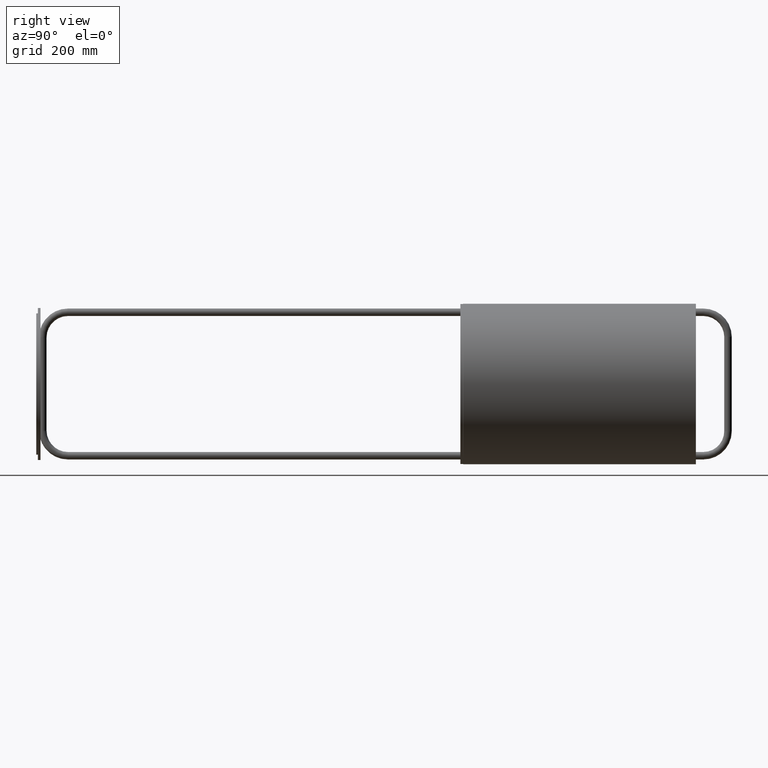
[diagram: clean part render]
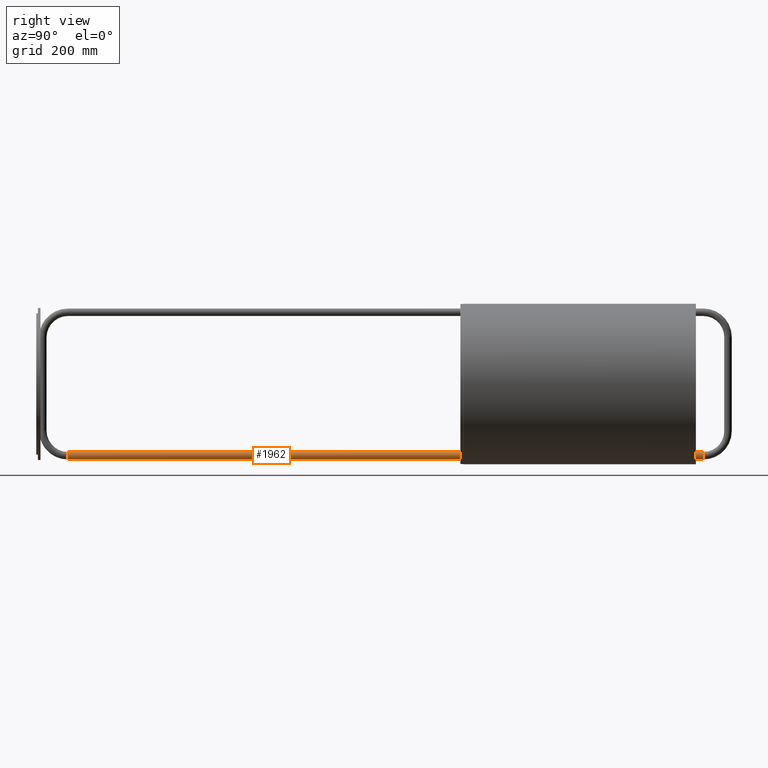
[diagram: same view with one face highlighted and labeled with its STEP entity id]
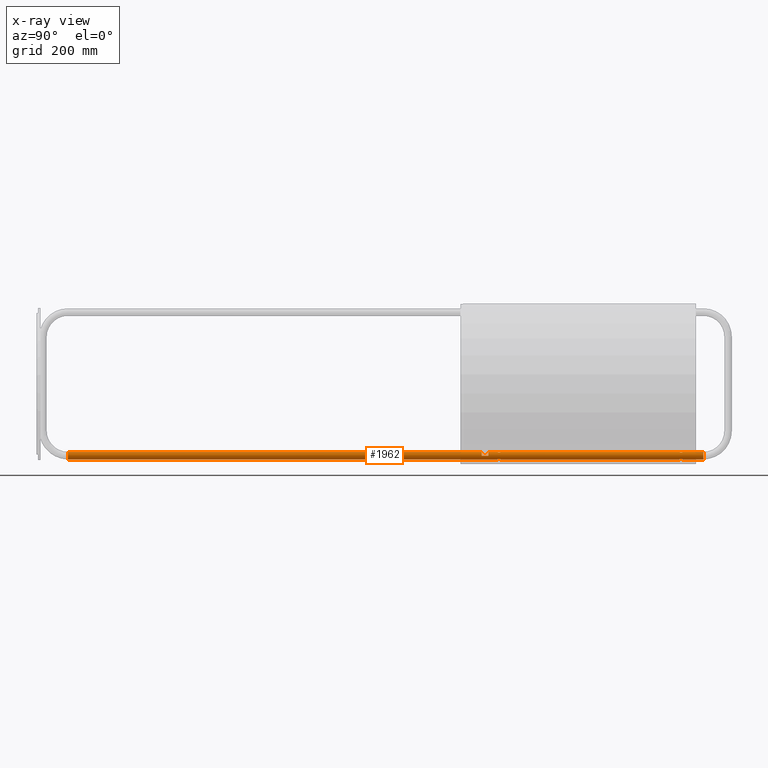
[diagram: x-ray of the same camera — body ghosted, the highlighted face saturated]
A machine part, right view. The second image highlights one B-rep face of the part: STEP entity #1962.
The next image is the same camera in x-ray: the body ghosted, the highlighted face saturated — about 0% of this face is hidden behind the body in this view.
In plain terms, the highlighted cylindrical surface (edge-blend (fillet) strip) has radius 7 mm, axis along (0, 1, -0).
Its self-contained STEP definition (entity closure, byte-faithful):
#146 = CARTESIAN_POINT ( 'NONE',  ( 126.9999999999999700, -320.0000000000001700, 8.572527594031533300E-016 ) ) ;
#166 = CARTESIAN_POINT ( 'NONE',  ( 141.0000000000000000, -355.3602644299787100, 3.781776599227647900E-016 ) ) ;
#192 = CARTESIAN_POINT ( 'NONE',  ( 126.9999999999999700, -332.0000000000001700, 8.572527594031533300E-016 ) ) ;
#204 = CARTESIAN_POINT ( 'NONE',  ( 141.0000000000001100, -733.9999999999994300, 0.0000000000000000000 ) ) ;
#434 = VERTEX_POINT ( 'NONE', #146 ) ;
#446 = VERTEX_POINT ( 'NONE', #1399 ) ;
#490 = VERTEX_POINT ( 'NONE', #1080 ) ;
#611 = VERTEX_POINT ( 'NONE', #1234 ) ;
#677 = CARTESIAN_POINT ( 'NONE',  ( 127.0000000000000000, -349.3606748984981900, -5.958125122679846200E-017 ) ) ;
#712 = CARTESIAN_POINT ( 'NONE',  ( 127.0000000000001100, -733.9999999999998900, 8.572527594031433700E-016 ) ) ;
#732 = CARTESIAN_POINT ( 'NONE',  ( 133.9999999999999700, -332.0000000000001700, -7.000000000000070200 ) ) ;
#762 = CARTESIAN_POINT ( 'NONE',  ( 141.0000000000000000, -349.3606748984981900, -8.630978973075196600E-015 ) ) ;
#763 = CARTESIAN_POINT ( 'NONE',  ( 140.9999999999999100, 452.9999999999999400, 0.0000000000000000000 ) ) ;
#773 = VERTEX_POINT ( 'NONE', #1303 ) ;
#812 = VERTEX_POINT ( 'NONE', #1300 ) ;
#869 = CARTESIAN_POINT ( 'NONE',  ( 126.9999999999996700, -695.3604678334094200, 7.369337560215173200E-014 ) ) ;
#917 = VERTEX_POINT ( 'NONE', #677 ) ;
#972 = VERTEX_POINT ( 'NONE', #869 ) ;
#994 = VERTEX_POINT ( 'NONE', #1296 ) ;
#1011 = VERTEX_POINT ( 'NONE', #1280 ) ;
#1026 = VERTEX_POINT ( 'NONE', #192 ) ;
#1027 = VERTEX_POINT ( 'NONE', #732 ) ;
#1032 = VERTEX_POINT ( 'NONE', #1202 ) ;
#1045 = VERTEX_POINT ( 'NONE', #166 ) ;
#1080 = CARTESIAN_POINT ( 'NONE',  ( 126.9999999999983900, -355.3602644299824600, 3.342013202503950500E-013 ) ) ;
#1086 = CARTESIAN_POINT ( 'NONE',  ( 141.0000000000000300, -689.3604678413933000, -1.295731552899731200E-014 ) ) ;
#1127 = VERTEX_POINT ( 'NONE', #1183 ) ;
#1132 = VERTEX_POINT ( 'NONE', #712 ) ;
#1183 = CARTESIAN_POINT ( 'NONE',  ( 141.0000000000000300, -695.3604678334085100, -4.871847897905070300E-018 ) ) ;
#1202 = CARTESIAN_POINT ( 'NONE',  ( 140.3244819036834500, -692.3604678374009600, -3.000154771004491100 ) ) ;
#1234 = CARTESIAN_POINT ( 'NONE',  ( 127.6589185963639500, -352.3604696642384500, -2.964909211503968100 ) ) ;
#1280 = CARTESIAN_POINT ( 'NONE',  ( 127.6755180963166100, -692.3604678374009600, -3.000154771004491100 ) ) ;
#1296 = CARTESIAN_POINT ( 'NONE',  ( 126.9999999999998900, 452.9999999999999400, 8.572527594031567900E-016 ) ) ;
#1300 = CARTESIAN_POINT ( 'NONE',  ( 127.0000000000000300, -689.3604678413933000, 8.638389555567177200E-016 ) ) ;
#1303 = CARTESIAN_POINT ( 'NONE',  ( 133.9999999999999700, -320.0000000000001700, -7.000000000000012400 ) ) ;
#1364 = VERTEX_POINT ( 'NONE', #1086 ) ;
#1365 = VERTEX_POINT ( 'NONE', #204 ) ;
#1373 = VERTEX_POINT ( 'NONE', #763 ) ;
#1374 = VERTEX_POINT ( 'NONE', #762 ) ;
#1399 = CARTESIAN_POINT ( 'NONE',  ( 140.3410814036360800, -352.3604696642384500, -2.964909211503968100 ) ) ;
#1486 = AXIS2_PLACEMENT_3D ( 'NONE', #4020, #4018, #4017 ) ;
#1564 = AXIS2_PLACEMENT_3D ( 'NONE', #3739, #3502, #3484 ) ;
#1571 = AXIS2_PLACEMENT_3D ( 'NONE', #3664, #3648, #3650 ) ;
#1750 = AXIS2_PLACEMENT_3D ( 'NONE', #4163, #4165, #4423 ) ;
#1804 = AXIS2_PLACEMENT_3D ( 'NONE', #2977, #2971, #3005 ) ;
#1962 = ADVANCED_FACE ( 'NONE', ( #2767 ), #2764, .T. ) ;
#1977 = EDGE_CURVE ( 'NONE', #1026, #917, #2622, .T. ) ;
#2009 = EDGE_CURVE ( 'NONE', #773, #1027, #5901, .T. ) ;
#2011 = EDGE_CURVE ( 'NONE', #812, #1011, #8505, .T. ) ;
#2012 = EDGE_CURVE ( 'NONE', #972, #1132, #2731, .T. ) ;
#2017 = EDGE_CURVE ( 'NONE', #994, #1373, #5870, .T. ) ;
#2104 = EDGE_CURVE ( 'NONE', #1045, #1364, #6094, .T. ) ;
#2112 = EDGE_CURVE ( 'NONE', #434, #773, #5953, .T. ) ;
#2116 = EDGE_CURVE ( 'NONE', #1127, #1365, #5952, .T. ) ;
#2117 = EDGE_CURVE ( 'NONE', #994, #434, #5966, .T. ) ;
#2145 = EDGE_CURVE ( 'NONE', #1365, #1132, #5861, .T. ) ;
#2156 = EDGE_CURVE ( 'NONE', #1373, #1374, #5866, .T. ) ;
#2176 = EDGE_CURVE ( 'NONE', #490, #812, #5903, .T. ) ;
#2177 = EDGE_CURVE ( 'NONE', #917, #611, #8464, .T. ) ;
#2197 = EDGE_CURVE ( 'NONE', #1027, #1026, #5915, .T. ) ;
#2211 = EDGE_CURVE ( 'NONE', #1032, #1364, #8509, .T. ) ;
#2234 = EDGE_CURVE ( 'NONE', #446, #1374, #8462, .T. ) ;
#2616 = VECTOR ( 'NONE', #3019, 1000.000000000000000 ) ;
#2620 = VECTOR ( 'NONE', #2881, 1000.000000000000000 ) ;
#2622 = LINE ( 'NONE', #2903, #2620 ) ;
#2731 = LINE ( 'NONE', #3018, #2616 ) ;
#2764 = CYLINDRICAL_SURFACE ( 'NONE', #1750, 7.000000000000006200 ) ;
#2767 = FACE_OUTER_BOUND ( 'NONE', #7674, .T. ) ;
#2881 = DIRECTION ( 'NONE',  ( 1.225411726959334000E-016, -1.000000000000000000, 0.0000000000000000000 ) ) ;
#2899 = ORIENTED_EDGE ( 'NONE', *, *, #2104, .T. ) ;
#2901 = ORIENTED_EDGE ( 'NONE', *, *, #5333, .F. ) ;
#2902 = ORIENTED_EDGE ( 'NONE', *, *, #2234, .F. ) ;
#2903 = CARTESIAN_POINT ( 'NONE',  ( 126.9999999999998900, 452.9999999999999400, 8.572527594031490000E-016 ) ) ;
#2904 = ORIENTED_EDGE ( 'NONE', *, *, #2211, .F. ) ;
#2909 = ORIENTED_EDGE ( 'NONE', *, *, #2156, .T. ) ;
#2910 = ORIENTED_EDGE ( 'NONE', *, *, #2117, .F. ) ;
#2957 = CARTESIAN_POINT ( 'NONE',  ( 127.1632598663516100, -689.7620679507440400, -1.512164103775636800 ) ) ;
#2959 = CARTESIAN_POINT ( 'NONE',  ( 133.9999999999998900, 452.9999999999999400, -7.000000000000070200 ) ) ;
#2971 = DIRECTION ( 'NONE',  ( 1.232687704539891700E-015, -1.000000000000000000, 0.0000000000000000000 ) ) ;
#2977 = CARTESIAN_POINT ( 'NONE',  ( 133.9999999999998900, 452.9999999999999400, 0.0000000000000000000 ) ) ;
#3005 = DIRECTION ( 'NONE',  ( 0.0000000000000000000, 0.0000000000000000000, 1.000000000000000000 ) ) ;
#3014 = CARTESIAN_POINT ( 'NONE',  ( 127.6755180963166100, -692.3604678374009600, -3.000154771004491100 ) ) ;
#3018 = CARTESIAN_POINT ( 'NONE',  ( 126.9999999999998900, 452.9999999999999400, 8.572527594031490000E-016 ) ) ;
#3019 = DIRECTION ( 'NONE',  ( 1.225411726959334000E-016, -1.000000000000000000, 0.0000000000000000000 ) ) ;
#3033 = CARTESIAN_POINT ( 'NONE',  ( 127.6755180963166700, -692.1597877126922600, -3.000154771004491600 ) ) ;
#3036 = CARTESIAN_POINT ( 'NONE',  ( 127.6297105144297000, -691.5741270309796400, -2.901939124833272200 ) ) ;
#3038 = CARTESIAN_POINT ( 'NONE',  ( 127.5379593966842700, -691.0222091615741000, -2.692377366653626600 ) ) ;
#3040 = CARTESIAN_POINT ( 'NONE',  ( 127.6657413338964100, -691.9597176986608200, -2.979766092346332900 ) ) ;
#3042 = CARTESIAN_POINT ( 'NONE',  ( 127.6034956480600600, -691.3866698296412800, -2.844573205066709400 ) ) ;
#3044 = CARTESIAN_POINT ( 'NONE',  ( 127.4995160613939500, -690.8500961926083600, -2.599423662084461700 ) ) ;
#3046 = CARTESIAN_POINT ( 'NONE',  ( 127.4174310256058500, -690.5287804555249500, -2.383921246271262900 ) ) ;
#3048 = CARTESIAN_POINT ( 'NONE',  ( 127.3732559222899300, -690.3776667409986200, -2.259897623341503300 ) ) ;
#3050 = CARTESIAN_POINT ( 'NONE',  ( 127.0000000000000300, -689.3604678413933000, 8.638389555567177200E-016 ) ) ;
#3053 = CARTESIAN_POINT ( 'NONE',  ( 127.2427820996669400, -689.9791320700921900, -1.835119118533040000 ) ) ;
#3056 = CARTESIAN_POINT ( 'NONE',  ( 127.2856510390644800, -690.1021144880834300, -1.984538326723155100 ) ) ;
#3059 = DIRECTION ( 'NONE',  ( 1.225411726959334000E-016, -1.000000000000000000, 0.0000000000000000000 ) ) ;
#3061 = CARTESIAN_POINT ( 'NONE',  ( 127.0084015605339100, -689.3798896385006900, -0.3952673813226925100 ) ) ;
#3062 = CARTESIAN_POINT ( 'NONE',  ( 127.0000000000000300, -689.3604576359862200, -0.1978162638467421700 ) ) ;
#3065 = CARTESIAN_POINT ( 'NONE',  ( 127.0416272800573600, -689.4586632436776200, -0.7872319428477543300 ) ) ;
#3067 = CARTESIAN_POINT ( 'NONE',  ( 127.1264565495715900, -689.6677362764535200, -1.337177364666631400 ) ) ;
#3069 = CARTESIAN_POINT ( 'NONE',  ( 127.0658610479099300, -689.5166368457969400, -0.9753767798193949700 ) ) ;
#3422 = CARTESIAN_POINT ( 'NONE',  ( 140.9999999999999100, 452.9999999999999400, 0.0000000000000000000 ) ) ;
#3423 = DIRECTION ( 'NONE',  ( 1.225411726959334000E-016, -1.000000000000000000, 0.0000000000000000000 ) ) ;
#3450 = CARTESIAN_POINT ( 'NONE',  ( 127.0000000000000000, -349.3606748984981900, -5.958125122679846200E-017 ) ) ;
#3484 = DIRECTION ( 'NONE',  ( 0.0000000000000000000, 0.0000000000000000000, -1.000000000000000000 ) ) ;
#3502 = DIRECTION ( 'NONE',  ( -2.807720014556424100E-014, 1.000000000000000000, 0.0000000000000000000 ) ) ;
#3504 = CARTESIAN_POINT ( 'NONE',  ( 127.6589185963639900, -352.1613935970685800, -2.964909211503968600 ) ) ;
#3505 = CARTESIAN_POINT ( 'NONE',  ( 127.6589185963639500, -352.3604696642384500, -2.964909211503968100 ) ) ;
#3520 = ORIENTED_EDGE ( 'NONE', *, *, #2017, .T. ) ;
#3521 = CARTESIAN_POINT ( 'NONE',  ( 127.6494351957613800, -351.9628640748422900, -2.944843122009552800 ) ) ;
#3523 = CARTESIAN_POINT ( 'NONE',  ( 127.2376118716387100, -349.9915949735819300, -1.815774446264290900 ) ) ;
#3525 = ORIENTED_EDGE ( 'NONE', *, *, #2116, .T. ) ;
#3526 = CARTESIAN_POINT ( 'NONE',  ( 127.2794698818229100, -350.1146663144936000, -1.963363591959695700 ) ) ;
#3529 = ORIENTED_EDGE ( 'NONE', *, *, #5111, .F. ) ;
#3528 = CARTESIAN_POINT ( 'NONE',  ( 127.4077291798263200, -350.5277387583603300, -2.371339724232112800 ) ) ;
#3530 = CARTESIAN_POINT ( 'NONE',  ( 127.4935031675799000, -350.8509260295782000, -2.586892667695794000 ) ) ;
#3533 = CARTESIAN_POINT ( 'NONE',  ( 127.5889967461881400, -351.3939538417960800, -2.811701612143742600 ) ) ;
#3535 = CARTESIAN_POINT ( 'NONE',  ( 127.6144547876797800, -351.5800958585222700, -2.868202692888907300 ) ) ;
#3540 = CARTESIAN_POINT ( 'NONE',  ( 127.0408777073294400, -349.4665403684534200, -0.7800027658806093500 ) ) ;
#3542 = CARTESIAN_POINT ( 'NONE',  ( 127.0083148593923700, -349.3845170295645100, -0.3925892175439636400 ) ) ;
#3545 = CARTESIAN_POINT ( 'NONE',  ( 127.0000000000000300, -349.3629694034406700, -0.1961495939988203200 ) ) ;
#3548 = CARTESIAN_POINT ( 'NONE',  ( 127.0646109136559000, -349.5257612075089400, -0.9660636942519362800 ) ) ;
#3550 = CARTESIAN_POINT ( 'NONE',  ( 127.1599518467273500, -349.7739057562482100, -1.496887203238636000 ) ) ;
#3552 = CARTESIAN_POINT ( 'NONE',  ( 127.1239503510845900, -349.6788857954348400, -1.323949419721843500 ) ) ;
#3553 = DIRECTION ( 'NONE',  ( 1.225411726959334000E-016, -1.000000000000000000, 0.0000000000000000000 ) ) ;
#3556 = CARTESIAN_POINT ( 'NONE',  ( 126.9999999999998900, 452.9999999999999400, 8.572527594031490000E-016 ) ) ;
#3606 = CARTESIAN_POINT ( 'NONE',  ( 140.9342927057822700, -689.5162455321240000, -0.9745916013936527500 ) ) ;
#3607 = CARTESIAN_POINT ( 'NONE',  ( 140.8425257764218900, -689.7450970623430100, -1.522109547597352300 ) ) ;
#3609 = CARTESIAN_POINT ( 'NONE',  ( 140.7581438946383200, -689.9643483678236200, -1.846898908590424600 ) ) ;
#3611 = CARTESIAN_POINT ( 'NONE',  ( 141.0000000000000000, -689.3604574913350700, -0.2006201032015285700 ) ) ;
#3613 = CARTESIAN_POINT ( 'NONE',  ( 140.9911997657794700, -689.3808291689729200, -0.4008136390374728000 ) ) ;
#3615 = CARTESIAN_POINT ( 'NONE',  ( 140.3244819036834800, -692.1627040117282400, -3.000154771004492000 ) ) ;
#3617 = CARTESIAN_POINT ( 'NONE',  ( 140.3337991233727300, -691.9655176330181800, -2.980749887652804500 ) ) ;
#3637 = CARTESIAN_POINT ( 'NONE',  ( 140.3244819036834500, -692.3604678374009600, -3.000154771004491100 ) ) ;
#3648 = DIRECTION ( 'NONE',  ( -0.0000000000000000000, 1.000000000000000000, 0.0000000000000000000 ) ) ;
#3650 = DIRECTION ( 'NONE',  ( 0.0000000000000000000, 0.0000000000000000000, 1.000000000000000000 ) ) ;
#3664 = CARTESIAN_POINT ( 'NONE',  ( 133.9999999999999700, -332.0000000000001700, 0.0000000000000000000 ) ) ;
#3670 = CARTESIAN_POINT ( 'NONE',  ( 140.9583328160001400, -689.4587635965265200, -0.7868482446118477700 ) ) ;
#3684 = CARTESIAN_POINT ( 'NONE',  ( 141.0000000000000300, -689.3604678413933000, -1.295731552899731200E-014 ) ) ;
#3685 = CARTESIAN_POINT ( 'NONE',  ( 140.5005458018299900, -690.8497700231872600, -2.599292332521201000 ) ) ;
#3686 = CARTESIAN_POINT ( 'NONE',  ( 140.3966878668204300, -691.3857456663305400, -2.844138434840759000 ) ) ;
#3688 = CARTESIAN_POINT ( 'NONE',  ( 140.4616283163450100, -691.0244059127733200, -2.693343387589843400 ) ) ;
#3689 = CARTESIAN_POINT ( 'NONE',  ( 140.5829844531134800, -690.5272385935811600, -2.382799202966792600 ) ) ;
#3690 = CARTESIAN_POINT ( 'NONE',  ( 140.6266922866133800, -690.3778364535264700, -2.260052091951877200 ) ) ;
#3691 = CARTESIAN_POINT ( 'NONE',  ( 140.3702497951185000, -691.5736817070580900, -2.902033558691807800 ) ) ;
#3739 = CARTESIAN_POINT ( 'NONE',  ( 134.0000000000001100, -733.9999999999996600, 0.0000000000000000000 ) ) ;
#3820 = CARTESIAN_POINT ( 'NONE',  ( 140.3410814036360800, -352.3604696642384500, -2.964909211503968100 ) ) ;
#3875 = ORIENTED_EDGE ( 'NONE', *, *, #2009, .F. ) ;
#3877 = ORIENTED_EDGE ( 'NONE', *, *, #2112, .F. ) ;
#3907 = CARTESIAN_POINT ( 'NONE',  ( 140.9999999999999100, 452.9999999999999400, 0.0000000000000000000 ) ) ;
#3956 = DIRECTION ( 'NONE',  ( 1.225411726959334000E-016, -1.000000000000000000, 0.0000000000000000000 ) ) ;
#3963 = ORIENTED_EDGE ( 'NONE', *, *, #2145, .T. ) ;
#3966 = ORIENTED_EDGE ( 'NONE', *, *, #5275, .F. ) ;
#3968 = ORIENTED_EDGE ( 'NONE', *, *, #2176, .F. ) ;
#3972 = ORIENTED_EDGE ( 'NONE', *, *, #2011, .F. ) ;
#3977 = ORIENTED_EDGE ( 'NONE', *, *, #2177, .F. ) ;
#3979 = ORIENTED_EDGE ( 'NONE', *, *, #2197, .F. ) ;
#4012 = CARTESIAN_POINT ( 'NONE',  ( 140.9999999999999100, 452.9999999999999400, 0.0000000000000000000 ) ) ;
#4013 = DIRECTION ( 'NONE',  ( 1.225411726959334000E-016, -1.000000000000000000, 0.0000000000000000000 ) ) ;
#4015 = CARTESIAN_POINT ( 'NONE',  ( 126.9999999999998900, 452.9999999999999400, 8.572527594031490000E-016 ) ) ;
#4017 = DIRECTION ( 'NONE',  ( 0.0000000000000000000, 0.0000000000000000000, -1.000000000000000000 ) ) ;
#4018 = DIRECTION ( 'NONE',  ( 0.0000000000000000000, -1.000000000000000000, -3.965082230804122700E-015 ) ) ;
#4020 = CARTESIAN_POINT ( 'NONE',  ( 133.9999999999999700, -320.0000000000001700, 0.0000000000000000000 ) ) ;
#4023 = ORIENTED_EDGE ( 'NONE', *, *, #1977, .F. ) ;
#4029 = DIRECTION ( 'NONE',  ( 1.225411726959334000E-016, -1.000000000000000000, 0.0000000000000000000 ) ) ;
#4032 = ORIENTED_EDGE ( 'NONE', *, *, #2012, .F. ) ;
#4133 = ORIENTED_EDGE ( 'NONE', *, *, #5195, .F. ) ;
#4163 = CARTESIAN_POINT ( 'NONE',  ( 133.9999999999998900, 452.9999999999999400, 0.0000000000000000000 ) ) ;
#4165 = DIRECTION ( 'NONE',  ( 1.225411726959334000E-016, -1.000000000000000000, 0.0000000000000000000 ) ) ;
#4423 = DIRECTION ( 'NONE',  ( 1.000000000000000000, 0.0000000000000000000, 0.0000000000000000000 ) ) ;
#4580 = CARTESIAN_POINT ( 'NONE',  ( 140.9590895208853300, -349.4666196453968600, -0.7796529154657312300 ) ) ;
#4627 = CARTESIAN_POINT ( 'NONE',  ( 141.0000000000000000, -349.3630028721872800, -0.1990107257867672900 ) ) ;
#4659 = CARTESIAN_POINT ( 'NONE',  ( 140.7633326832787800, -349.9768217832343600, -1.827207406024082400 ) ) ;
#4663 = CARTESIAN_POINT ( 'NONE',  ( 140.9355249038986500, -349.5254052407069000, -0.9653539565030370100 ) ) ;
#4664 = CARTESIAN_POINT ( 'NONE',  ( 140.8457712898034200, -349.7570296914164500, -1.506343673747981200 ) ) ;
#4666 = CARTESIAN_POINT ( 'NONE',  ( 140.5924165133086500, -350.5390687696950600, -2.356489514595924800 ) ) ;
#4698 = CARTESIAN_POINT ( 'NONE',  ( 140.6350216921072700, -350.3900523215390300, -2.235358163158913700 ) ) ;
#4809 = CARTESIAN_POINT ( 'NONE',  ( 141.0000000000000000, -349.3606748984981900, -8.630978973075196600E-015 ) ) ;
#4812 = CARTESIAN_POINT ( 'NONE',  ( 140.3855160040662900, -351.5796715871725800, -2.868274010240583900 ) ) ;
#4819 = CARTESIAN_POINT ( 'NONE',  ( 140.9913405986582700, -349.3853881389819100, -0.3974195036032624500 ) ) ;
#4827 = CARTESIAN_POINT ( 'NONE',  ( 140.5121791611504100, -350.8601217597549200, -2.569926242214604500 ) ) ;
#4828 = CARTESIAN_POINT ( 'NONE',  ( 140.4743157274415900, -351.0338444025700300, -2.662659814306845600 ) ) ;
#4830 = CARTESIAN_POINT ( 'NONE',  ( 140.4111653647536000, -351.3931129181686400, -2.811312876772379200 ) ) ;
#4850 = CARTESIAN_POINT ( 'NONE',  ( 140.3501760733020700, -351.9678704195342800, -2.945687402639685100 ) ) ;
#4851 = CARTESIAN_POINT ( 'NONE',  ( 140.3410814036360800, -352.1643863929691600, -2.964909211503965000 ) ) ;
#5111 = EDGE_CURVE ( 'NONE', #1127, #1032, #8473, .T. ) ;
#5195 = EDGE_CURVE ( 'NONE', #611, #490, #8463, .T. ) ;
#5275 = EDGE_CURVE ( 'NONE', #1011, #972, #8472, .T. ) ;
#5333 = EDGE_CURVE ( 'NONE', #1045, #446, #8498, .T. ) ;
#5850 = VECTOR ( 'NONE', #4013, 1000.000000000000000 ) ;
#5851 = VECTOR ( 'NONE', #4029, 1000.000000000000000 ) ;
#5861 = CIRCLE ( 'NONE', #1564, 7.000000000000016000 ) ;
#5866 = LINE ( 'NONE', #3422, #5921 ) ;
#5870 = CIRCLE ( 'NONE', #1804, 7.000000000000014200 ) ;
#5901 = LINE ( 'NONE', #2959, #6020 ) ;
#5903 = LINE ( 'NONE', #3556, #5924 ) ;
#5915 = CIRCLE ( 'NONE', #1571, 7.000000000000014200 ) ;
#5921 = VECTOR ( 'NONE', #3423, 1000.000000000000000 ) ;
#5924 = VECTOR ( 'NONE', #3553, 1000.000000000000000 ) ;
#5952 = LINE ( 'NONE', #4012, #5850 ) ;
#5953 = CIRCLE ( 'NONE', #1486, 7.000000000000014200 ) ;
#5966 = LINE ( 'NONE', #4015, #5851 ) ;
#6020 = VECTOR ( 'NONE', #3059, 1000.000000000000000 ) ;
#6045 = VECTOR ( 'NONE', #3956, 1000.000000000000000 ) ;
#6094 = LINE ( 'NONE', #3907, #6045 ) ;
#6913 = CARTESIAN_POINT ( 'NONE',  ( 140.7198683659672400, -354.6042439231310400, -1.965592367459486800 ) ) ;
#6943 = CARTESIAN_POINT ( 'NONE',  ( 127.4074249919701000, -354.1825195174993200, -2.356073308379250900 ) ) ;
#6944 = CARTESIAN_POINT ( 'NONE',  ( 127.4880610874909800, -353.8598414737978100, -2.570559913853032200 ) ) ;
#6985 = CARTESIAN_POINT ( 'NONE',  ( 127.5252146386629600, -353.6894549493346200, -2.661526912138031200 ) ) ;
#6992 = CARTESIAN_POINT ( 'NONE',  ( 127.1533325168497400, -354.9662376894215200, -1.501246295000088400 ) ) ;
#6993 = CARTESIAN_POINT ( 'NONE',  ( 127.0082896851612600, -355.3364885127053300, -0.3916671850038635500 ) ) ;
#6994 = CARTESIAN_POINT ( 'NONE',  ( 127.3641834995875300, -354.3335239686653600, -2.232923996623572500 ) ) ;
#7139 = CARTESIAN_POINT ( 'NONE',  ( 127.0413098915782200, -695.2630284813154700, -0.7840238091200371100 ) ) ;
#7184 = CARTESIAN_POINT ( 'NONE',  ( 127.5378788150899400, -693.6989532896687900, -2.692170441793795300 ) ) ;
#7209 = CARTESIAN_POINT ( 'NONE',  ( 127.0084437137749800, -695.3409425009658700, -0.3952240565307347200 ) ) ;
#7213 = CARTESIAN_POINT ( 'NONE',  ( 126.9999999999996700, -695.3604678334094200, 7.369337560215173200E-014 ) ) ;
#7219 = CARTESIAN_POINT ( 'NONE',  ( 127.0000000000000300, -695.3604780840265700, -0.1986926050134574200 ) ) ;
#7279 = CARTESIAN_POINT ( 'NONE',  ( 127.6030525657652700, -693.3369494995195100, -2.843563858922305800 ) ) ;
#7674 = EDGE_LOOP ( 'NONE', ( #2910, #3520, #2909, #2902, #2901, #2899, #2904, #3529, #3525, #3963, #4032, #3966, #3972, #3968, #4133, #3977, #4023, #3979, #3875, #3877 ) ) ;
#7849 = CARTESIAN_POINT ( 'NONE',  ( 127.6589185963639500, -352.3604696642384500, -2.964909211503968100 ) ) ;
#7857 = CARTESIAN_POINT ( 'NONE',  ( 140.5825744491909900, -694.1922013214303900, -2.383915986936893100 ) ) ;
#7858 = CARTESIAN_POINT ( 'NONE',  ( 140.3341230432488100, -692.7595724033084300, -2.980057086436909100 ) ) ;
#7859 = CARTESIAN_POINT ( 'NONE',  ( 140.8365718067134400, -694.9584177692702300, -1.512886053830969600 ) ) ;
#7861 = CARTESIAN_POINT ( 'NONE',  ( 140.5003383763046800, -693.8702449759141500, -2.599796685407380200 ) ) ;
#7862 = CARTESIAN_POINT ( 'NONE',  ( 140.3244819036834500, -692.5583195918918600, -3.000154771004491600 ) ) ;
#7863 = CARTESIAN_POINT ( 'NONE',  ( 140.7572010786222400, -694.7417481550045300, -1.835149003021641300 ) ) ;
#7864 = CARTESIAN_POINT ( 'NONE',  ( 140.4614119475344000, -693.6954750123029500, -2.693859066878867100 ) ) ;
#7865 = CARTESIAN_POINT ( 'NONE',  ( 140.8732498834333500, -695.0524600360342900, -1.338807159783969900 ) ) ;
#7866 = CARTESIAN_POINT ( 'NONE',  ( 140.3244819036834500, -692.3604678374009600, -3.000154771004491100 ) ) ;
#7867 = CARTESIAN_POINT ( 'NONE',  ( 140.3965489805247000, -693.3342672392441300, -2.844447603260304100 ) ) ;
#7868 = CARTESIAN_POINT ( 'NONE',  ( 140.7138667967383900, -694.6173961293915200, -1.986165502067018800 ) ) ;
#7869 = CARTESIAN_POINT ( 'NONE',  ( 140.3703132418533000, -693.1472564562640200, -2.901889757745244000 ) ) ;
#7870 = CARTESIAN_POINT ( 'NONE',  ( 140.6262255264058800, -694.3415452914131300, -2.261414610184180800 ) ) ;
#7872 = CARTESIAN_POINT ( 'NONE',  ( 141.0000000000000600, -695.3604780340801900, -0.1977244701984257300 ) ) ;
#7873 = CARTESIAN_POINT ( 'NONE',  ( 140.9913648145342200, -695.3404959124978900, -0.3985851459378415000 ) ) ;
#7874 = CARTESIAN_POINT ( 'NONE',  ( 140.9583170697304400, -695.2621366902668600, -0.7873218182976784400 ) ) ;
#7875 = CARTESIAN_POINT ( 'NONE',  ( 140.9341779949481600, -695.2044034857237900, -0.9752661716592728700 ) ) ;
#7890 = CARTESIAN_POINT ( 'NONE',  ( 141.0000000000000300, -695.3604678334085100, -4.871847897905070300E-018 ) ) ;
#7908 = CARTESIAN_POINT ( 'NONE',  ( 127.4996862483754500, -693.8702513824857800, -2.599899351622272400 ) ) ;
#7909 = CARTESIAN_POINT ( 'NONE',  ( 127.6755180963166100, -692.3604678374009600, -3.000154771004491100 ) ) ;
#7911 = CARTESIAN_POINT ( 'NONE',  ( 127.4168195900817400, -694.1944701364201400, -2.382286968144963000 ) ) ;
#7921 = CARTESIAN_POINT ( 'NONE',  ( 127.3725040247643000, -694.3457086918385800, -2.257625783624420900 ) ) ;
#7922 = CARTESIAN_POINT ( 'NONE',  ( 127.2855782777509700, -694.6189745965540400, -1.984217230154137900 ) ) ;
#7937 = CARTESIAN_POINT ( 'NONE',  ( 127.2423524154279400, -694.7430477829498200, -1.833662772176976500 ) ) ;
#7938 = CARTESIAN_POINT ( 'NONE',  ( 127.1623009263811500, -694.9614126901937000, -1.507975934148755500 ) ) ;
#7951 = CARTESIAN_POINT ( 'NONE',  ( 127.2369949302680000, -354.7429067958771000, -1.828059964594891400 ) ) ;
#7965 = CARTESIAN_POINT ( 'NONE',  ( 127.0646860346232900, -355.1949820578016100, -0.9664725642356878400 ) ) ;
#7966 = CARTESIAN_POINT ( 'NONE',  ( 127.0405888341227900, -355.2551238348539200, -0.7771824333416965700 ) ) ;
#7970 = CARTESIAN_POINT ( 'NONE',  ( 126.9999999999999700, -355.3579615845880500, -0.1968625911735525600 ) ) ;
#7971 = CARTESIAN_POINT ( 'NONE',  ( 126.9999999999983900, -355.3602644299824600, 3.342013202503950500E-013 ) ) ;
#8020 = CARTESIAN_POINT ( 'NONE',  ( 127.1263338331662700, -695.0535068306112400, -1.336468680435555200 ) ) ;
#8022 = CARTESIAN_POINT ( 'NONE',  ( 127.6299219658692900, -693.1452387275222700, -2.902402802539178600 ) ) ;
#8039 = CARTESIAN_POINT ( 'NONE',  ( 127.6755180963166900, -692.5614300968814000, -3.000154771004491600 ) ) ;
#8098 = CARTESIAN_POINT ( 'NONE',  ( 140.7623526850955200, -354.7292358377864600, -1.815882203972514900 ) ) ;
#8104 = CARTESIAN_POINT ( 'NONE',  ( 127.0659335571889000, -695.2041165907902500, -0.9757856698789181300 ) ) ;
#8151 = CARTESIAN_POINT ( 'NONE',  ( 127.5885848622502200, -353.3295556397209800, -2.810752018740253700 ) ) ;
#8152 = CARTESIAN_POINT ( 'NONE',  ( 127.6146665245064800, -353.1392227108567000, -2.868673454045864300 ) ) ;
#8153 = CARTESIAN_POINT ( 'NONE',  ( 127.6496189372865500, -352.7553606394491800, -2.945238757305784500 ) ) ;
#8154 = CARTESIAN_POINT ( 'NONE',  ( 127.6589185963639500, -352.5598373884599300, -2.964909211503968600 ) ) ;
#8310 = CARTESIAN_POINT ( 'NONE',  ( 127.6659323788002800, -692.7584727265027600, -2.980171733167604300 ) ) ;
#8359 = CARTESIAN_POINT ( 'NONE',  ( 141.0000000000000000, -355.3602644299787100, 3.781776599227647900E-016 ) ) ;
#8382 = CARTESIAN_POINT ( 'NONE',  ( 140.4110737765456100, -353.3271393556509600, -2.811513949313186400 ) ) ;
#8383 = CARTESIAN_POINT ( 'NONE',  ( 140.3855677694163300, -353.1413750361185700, -2.868156085138899400 ) ) ;
#8385 = CARTESIAN_POINT ( 'NONE',  ( 140.3503815766205200, -352.7557842705862200, -2.945241738439558600 ) ) ;
#8386 = CARTESIAN_POINT ( 'NONE',  ( 140.3410814036360800, -352.5566363001906300, -2.964909211503971700 ) ) ;
#8387 = CARTESIAN_POINT ( 'NONE',  ( 140.3410814036360800, -352.3604696642384500, -2.964909211503968100 ) ) ;
#8388 = CARTESIAN_POINT ( 'NONE',  ( 140.6345805190986500, -354.3293598846165100, -2.236632635579277400 ) ) ;
#8389 = CARTESIAN_POINT ( 'NONE',  ( 140.5920568624497100, -354.1805480064523400, -2.357488732814375900 ) ) ;
#8390 = CARTESIAN_POINT ( 'NONE',  ( 140.5118887106410200, -353.8595379280167800, -2.570655990859663100 ) ) ;
#8391 = CARTESIAN_POINT ( 'NONE',  ( 140.4740222794106300, -353.6855904603994000, -2.663365010881668700 ) ) ;
#8392 = CARTESIAN_POINT ( 'NONE',  ( 141.0000000000000000, -355.3579674730086100, -0.1963592096729046000 ) ) ;
#8393 = CARTESIAN_POINT ( 'NONE',  ( 140.9914529642504700, -355.3358351102582400, -0.3958822310973280100 ) ) ;
#8394 = CARTESIAN_POINT ( 'NONE',  ( 140.9590824795961600, -355.2543010479090500, -0.7799412377879150200 ) ) ;
#8395 = CARTESIAN_POINT ( 'NONE',  ( 140.9354343253333800, -355.1953042610173300, -0.9659779735451998800 ) ) ;
#8396 = CARTESIAN_POINT ( 'NONE',  ( 140.8756192282854200, -355.0409333764353100, -1.326357023586556700 ) ) ;
#8397 = CARTESIAN_POINT ( 'NONE',  ( 140.8399030391075300, -354.9466359465543000, -1.497520761769160600 ) ) ;
#8462 = B_SPLINE_CURVE_WITH_KNOTS ( 'NONE', 3,
 ( #3820, #4851, #4850, #4812, #4830, #4828, #4827, #4666, #4698, #4659, #4664, #4663, #4580, #4819, #4627, #4809 ),
 .UNSPECIFIED., .F., .F.,
 ( 4, 2, 2, 2, 2, 2, 2, 4 ),
 ( 0.01427796150660191900, 0.01486608323256158800, 0.01545420495852125600, 0.01604232668448092600, 0.01663044841044059400, 0.01780669186235991600, 0.01839481358831960800, 0.01898293531427930000 ),
 .UNSPECIFIED. ) ;
#8463 = B_SPLINE_CURVE_WITH_KNOTS ( 'NONE', 3,
 ( #7849, #8154, #8153, #8152, #8151, #6985, #6944, #6943, #6994, #7951, #6992, #7965, #7966, #6993, #7970, #7971 ),
 .UNSPECIFIED., .F., .F.,
 ( 4, 2, 2, 2, 2, 2, 2, 4 ),
 ( 0.0000000000000000000, 0.0005889774728133093100, 0.001177954945626618600, 0.001766932418439927800, 0.002355909891253237200, 0.003533864836879873400, 0.004122842309693159000, 0.004711819782506445000 ),
 .UNSPECIFIED. ) ;
#8464 = B_SPLINE_CURVE_WITH_KNOTS ( 'NONE', 3,
 ( #3450, #3545, #3542, #3540, #3548, #3552, #3550, #3523, #3526, #3528, #3530, #3533, #3535, #3521, #3504, #3505 ),
 .UNSPECIFIED., .F., .F.,
 ( 4, 2, 2, 2, 2, 2, 2, 4 ),
 ( 0.01427675267472757600, 0.01486486852646482100, 0.01545298437820206600, 0.01604110022993931300, 0.01662921608167655700, 0.01780544778515106400, 0.01839356363688832500, 0.01898167948862558600 ),
 .UNSPECIFIED. ) ;
#8472 = B_SPLINE_CURVE_WITH_KNOTS ( 'NONE', 3,
 ( #7909, #8039, #8310, #8022, #7279, #7184, #7908, #7911, #7921, #7922, #7937, #7938, #8020, #8104, #7139, #7209, #7219, #7213 ),
 .UNSPECIFIED., .F., .F.,
 ( 4, 2, 2, 2, 2, 2, 2, 2, 4 ),
 ( 4.336808689942017300E-019, 0.0005936717264604572600, 0.001187343452920914100, 0.001781015179381370800, 0.002374686905841827700, 0.002968358632302283400, 0.003562030358762739000, 0.004155702085223194700, 0.004749373811683650300 ),
 .UNSPECIFIED. ) ;
#8473 = B_SPLINE_CURVE_WITH_KNOTS ( 'NONE', 3,
 ( #7890, #7872, #7873, #7874, #7875, #7865, #7859, #7863, #7868, #7870, #7857, #7861, #7864, #7867, #7869, #7858, #7862, #7866 ),
 .UNSPECIFIED., .F., .F.,
 ( 4, 2, 2, 2, 2, 2, 2, 2, 4 ),
 ( 0.009495464344458571400, 0.01008855840648767300, 0.01068165246851677400, 0.01127474653054587500, 0.01186784059257497600, 0.01246093465460407700, 0.01305402871663317900, 0.01364712277866228000, 0.01424021684069138100 ),
 .UNSPECIFIED. ) ;
#8498 = B_SPLINE_CURVE_WITH_KNOTS ( 'NONE', 3,
 ( #8359, #8392, #8393, #8394, #8395, #8396, #8397, #8098, #6913, #8388, #8389, #8390, #8391, #8382, #8383, #8385, #8386, #8387 ),
 .UNSPECIFIED., .F., .F.,
 ( 4, 2, 2, 2, 2, 2, 2, 2, 4 ),
 ( 0.009570987382182774600, 0.01015935914773516800, 0.01074773091328756100, 0.01133610267883995400, 0.01192447444439234700, 0.01251284620994474000, 0.01310121797549713300, 0.01368958974104952600, 0.01427796150660191900 ),
 .UNSPECIFIED. ) ;
#8505 = B_SPLINE_CURVE_WITH_KNOTS ( 'NONE', 3,
 ( #3050, #3062, #3061, #3065, #3069, #3067, #2957, #3053, #3056, #3048, #3046, #3044, #3038, #3042, #3036, #3040, #3033, #3014 ),
 .UNSPECIFIED., .F., .F.,
 ( 4, 2, 2, 2, 2, 2, 2, 2, 4 ),
 ( 0.01423890154245645300, 0.01483173980179092900, 0.01542457806112540500, 0.01601741632045988000, 0.01661025457979435600, 0.01720309283912883200, 0.01779593109846330400, 0.01838876935779778000, 0.01898160761713225600 ),
 .UNSPECIFIED. ) ;
#8509 = B_SPLINE_CURVE_WITH_KNOTS ( 'NONE', 3,
 ( #3637, #3615, #3617, #3691, #3686, #3688, #3685, #3689, #3690, #3609, #3607, #3606, #3670, #3613, #3611, #3684 ),
 .UNSPECIFIED., .F., .F.,
 ( 4, 2, 2, 2, 2, 2, 2, 4 ),
 ( 0.01424021684069138100, 0.01483304732123204300, 0.01542587780177270500, 0.01601870828231336700, 0.01661153876285402500, 0.01779719972393533100, 0.01839003020447597900, 0.01898286068501662400 ),
 .UNSPECIFIED. ) ;